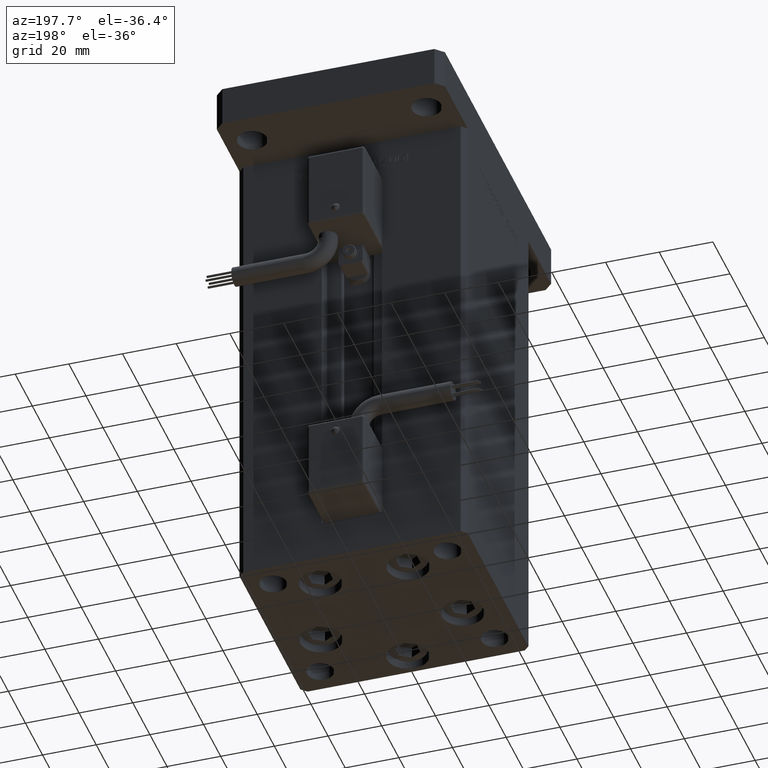
[diagram: clean part render]
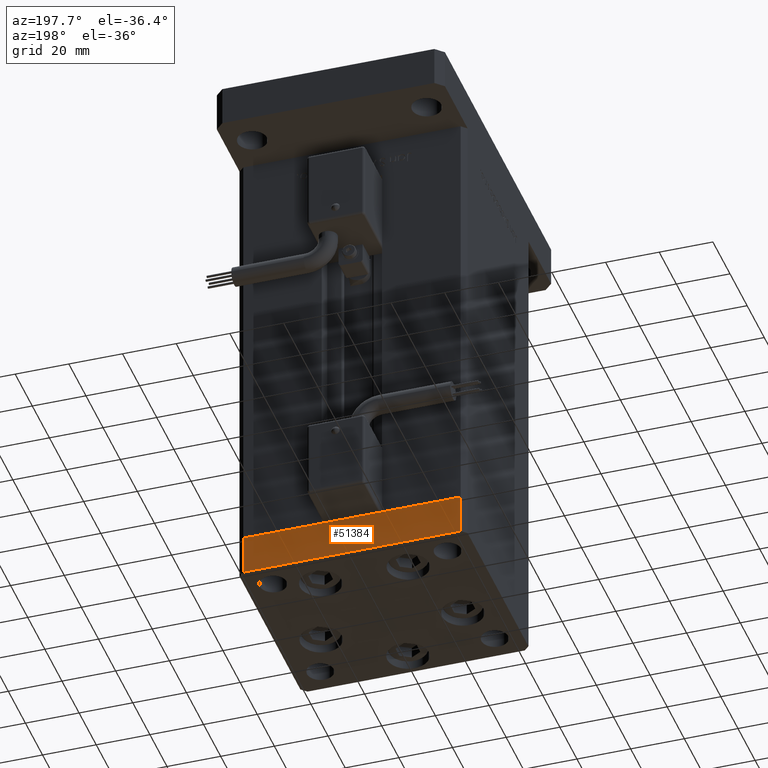
[diagram: same view with one face highlighted and labeled with its STEP entity id]
A machine part, auxiliary view. The second image highlights one B-rep face of the part: STEP entity #51384.
In plain terms, the highlighted planar face has unit normal (0, 1, 0).
Its self-contained STEP definition (entity closure, byte-faithful):
#1659 = DIRECTION ( 'NONE',  ( 0.000000000000000000, 0.000000000000000000, 1.000000000000000000 ) ) ;
#1944 = EDGE_CURVE ( 'NONE', #14490, #49181, #9952, .T. ) ;
#3949 = ORIENTED_EDGE ( 'NONE', *, *, #6437, .F. ) ;
#5652 = LINE ( 'NONE', #23045, #40776 ) ;
#6437 = EDGE_CURVE ( 'NONE', #51721, #19822, #45192, .T. ) ;
#8568 = PLANE ( 'NONE',  #18802 ) ;
#8830 = DIRECTION ( 'NONE',  ( -1.000000000000000000, -3.426614273534436165E-16, 0.000000000000000000 ) ) ;
#9133 = CARTESIAN_POINT ( 'NONE',  ( 40.49999999999991473, 37.50000000000000711, -15.00000000000000000 ) ) ;
#9952 = LINE ( 'NONE', #47887, #12080 ) ;
#10400 = VECTOR ( 'NONE', #28366, 1000.000000000000000 ) ;
#11734 = ORIENTED_EDGE ( 'NONE', *, *, #1944, .T. ) ;
#12080 = VECTOR ( 'NONE', #8830, 1000.000000000000000 ) ;
#14490 = VERTEX_POINT ( 'NONE', #30931 ) ;
#18802 = AXIS2_PLACEMENT_3D ( 'NONE', #9133, #53035, #21970 ) ;
#19822 = VERTEX_POINT ( 'NONE', #45044 ) ;
#20174 = LINE ( 'NONE', #29279, #20319 ) ;
#20319 = VECTOR ( 'NONE', #55517, 1000.000000000000000 ) ;
#21970 = DIRECTION ( 'NONE',  ( -1.000000000000000000, -3.426614273534436165E-16, 0.000000000000000000 ) ) ;
#22229 = ORIENTED_EDGE ( 'NONE', *, *, #24540, .F. ) ;
#23045 = CARTESIAN_POINT ( 'NONE',  ( 40.49999999999991473, 37.50000000000000711, -15.00000000000000000 ) ) ;
#24540 = EDGE_CURVE ( 'NONE', #14490, #51721, #5652, .T. ) ;
#25611 = CARTESIAN_POINT ( 'NONE',  ( 40.49999999999991473, 37.50000000000000711, 0.000000000000000000 ) ) ;
#28366 = DIRECTION ( 'NONE',  ( -1.000000000000000000, -3.426614273534436165E-16, 0.000000000000000000 ) ) ;
#29279 = CARTESIAN_POINT ( 'NONE',  ( -40.50000000000000711, 37.49999999999997868, -15.00000000000000000 ) ) ;
#30931 = CARTESIAN_POINT ( 'NONE',  ( 40.49999999999991473, 37.50000000000000711, -15.00000000000000000 ) ) ;
#35066 = FACE_OUTER_BOUND ( 'NONE', #35368, .T. ) ;
#35368 = EDGE_LOOP ( 'NONE', ( #3949, #22229, #11734, #44693 ) ) ;
#39692 = EDGE_CURVE ( 'NONE', #49181, #19822, #20174, .T. ) ;
#40776 = VECTOR ( 'NONE', #1659, 1000.000000000000000 ) ;
#44693 = ORIENTED_EDGE ( 'NONE', *, *, #39692, .T. ) ;
#45044 = CARTESIAN_POINT ( 'NONE',  ( -40.50000000000000711, 37.49999999999997868, 0.000000000000000000 ) ) ;
#45192 = LINE ( 'NONE', #45752, #10400 ) ;
#45752 = CARTESIAN_POINT ( 'NONE',  ( 40.49999999999991473, 37.50000000000000711, 0.000000000000000000 ) ) ;
#47887 = CARTESIAN_POINT ( 'NONE',  ( 40.49999999999991473, 37.50000000000000711, -15.00000000000000000 ) ) ;
#47902 = CARTESIAN_POINT ( 'NONE',  ( -40.50000000000000711, 37.49999999999997868, -15.00000000000000000 ) ) ;
#49181 = VERTEX_POINT ( 'NONE', #47902 ) ;
#51384 = ADVANCED_FACE ( 'NONE', ( #35066 ), #8568, .T. ) ;
#51721 = VERTEX_POINT ( 'NONE', #25611 ) ;
#53035 = DIRECTION ( 'NONE',  ( -3.426614273534436165E-16, 1.000000000000000000, 0.000000000000000000 ) ) ;
#55517 = DIRECTION ( 'NONE',  ( 0.000000000000000000, 0.000000000000000000, 1.000000000000000000 ) ) ;